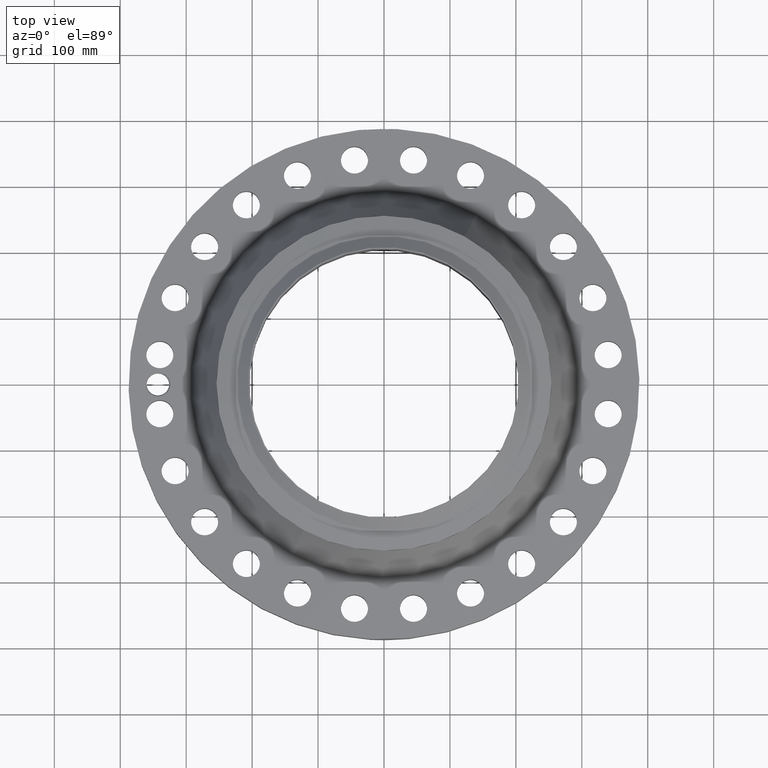
[diagram: clean part render]
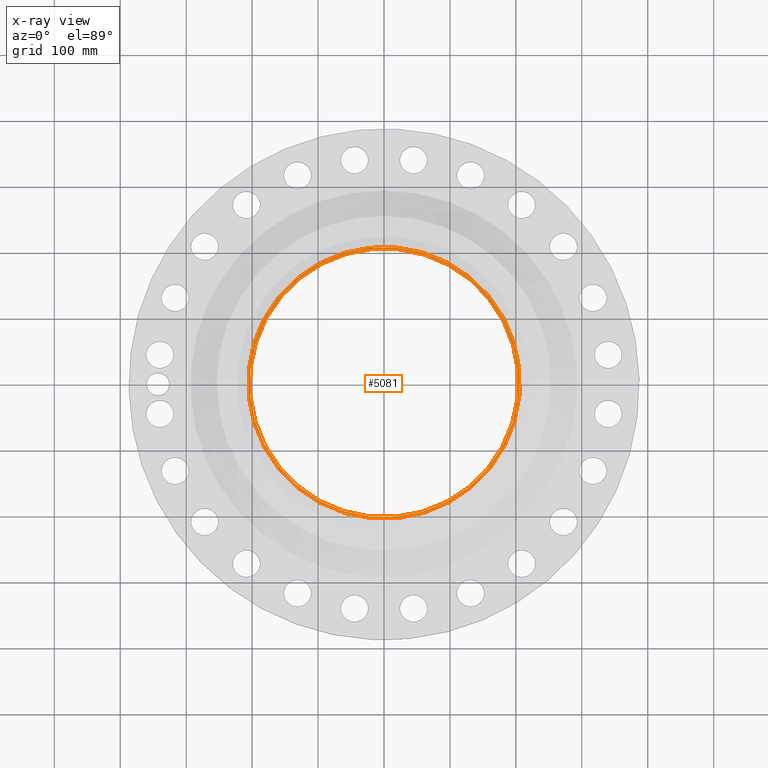
[diagram: x-ray — body ghosted, one internal face saturated and labeled with its STEP entity id]
A machine part, top view, then the same camera in x-ray: the body is ghosted and one INTERNAL B-rep face — a face not visible from any outside direction — is saturated and labeled: STEP entity #5081.
In plain terms, the highlighted planar face has unit normal (0, 0, -1).
Its self-contained STEP definition (entity closure, byte-faithful):
#3876=AXIS2_PLACEMENT_3D('Circle Axis2P3D',#3874,#3875,$) ;
#3944=AXIS2_PLACEMENT_3D('Circle Axis2P3D',#3942,#3943,$) ;
#5057=AXIS2_PLACEMENT_3D('Plane Axis2P3D',#5054,#5055,#5056) ;
#5061=AXIS2_PLACEMENT_3D('Circle Axis2P3D',#5059,#5060,$) ;
#5070=AXIS2_PLACEMENT_3D('Circle Axis2P3D',#5068,#5069,$) ;
#3874=CARTESIAN_POINT('Axis2P3D Location',(0.,0.,6.87000000003)) ;
#3878=CARTESIAN_POINT('Vertex',(3.85026650055,7.04786555457,6.87000000003)) ;
#3880=CARTESIAN_POINT('Vertex',(-3.85026650055,-7.04786555457,6.87000000003)) ;
#3942=CARTESIAN_POINT('Axis2P3D Location',(0.,0.,6.87000000003)) ;
#5054=CARTESIAN_POINT('Axis2P3D Location',(0.,10.,6.87000000003)) ;
#5059=CARTESIAN_POINT('Axis2P3D Location',(0.,0.,6.87000000003)) ;
#5063=CARTESIAN_POINT('Vertex',(3.88801654296,-7.11696654369,6.87000000003)) ;
#5065=CARTESIAN_POINT('Vertex',(-3.88801654296,7.11696654369,6.87000000003)) ;
#5068=CARTESIAN_POINT('Axis2P3D Location',(0.,0.,6.87000000003)) ;
#3875=DIRECTION('Axis2P3D Direction',(0.,0.,-0.0393700787402)) ;
#3943=DIRECTION('Axis2P3D Direction',(0.,0.,-0.0393700787402)) ;
#5055=DIRECTION('Axis2P3D Direction',(0.,0.,-0.0393700787402)) ;
#5056=DIRECTION('Axis2P3D XDirection',(0.0393700787402,0.,0.)) ;
#5060=DIRECTION('Axis2P3D Direction',(0.,0.,-0.0393700787402)) ;
#5069=DIRECTION('Axis2P3D Direction',(0.,0.,-0.0393700787402)) ;
#5074=ORIENTED_EDGE('',*,*,#5067,.T.) ;
#5075=ORIENTED_EDGE('',*,*,#5072,.T.) ;
#5078=ORIENTED_EDGE('',*,*,#3946,.T.) ;
#5079=ORIENTED_EDGE('',*,*,#3882,.T.) ;
#5080=FACE_BOUND('',#5077,.T.) ;
#5081=ADVANCED_FACE('PartBody',(#5076,#5080),#5058,.F.) ;
#3877=CIRCLE('generated circle',#3876,8.03100000003) ;
#3945=CIRCLE('generated circle',#3944,8.03100000003) ;
#5062=CIRCLE('generated circle',#5061,8.10974015751) ;
#5071=CIRCLE('generated circle',#5070,8.10974015751) ;
#3882=EDGE_CURVE('',#3879,#3881,#3877,.T.) ;
#3946=EDGE_CURVE('',#3881,#3879,#3945,.T.) ;
#5067=EDGE_CURVE('',#5064,#5066,#5062,.F.) ;
#5072=EDGE_CURVE('',#5066,#5064,#5071,.F.) ;
#5073=EDGE_LOOP('',(#5074,#5075)) ;
#5077=EDGE_LOOP('',(#5078,#5079)) ;
#5076=FACE_OUTER_BOUND('',#5073,.T.) ;
#5058=PLANE('',#5057) ;
#3879=VERTEX_POINT('',#3878) ;
#3881=VERTEX_POINT('',#3880) ;
#5064=VERTEX_POINT('',#5063) ;
#5066=VERTEX_POINT('',#5065) ;